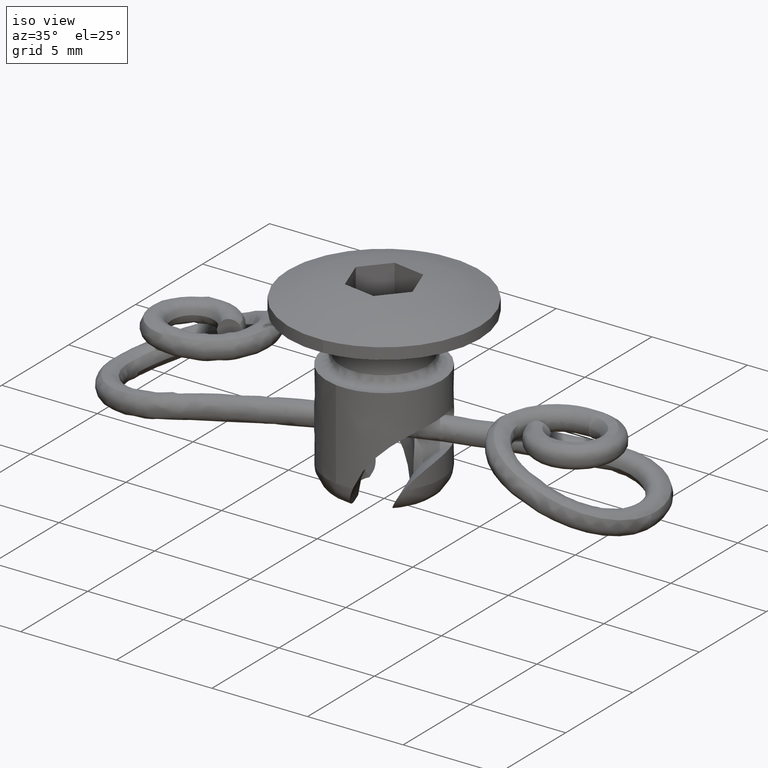
[diagram: clean part render]
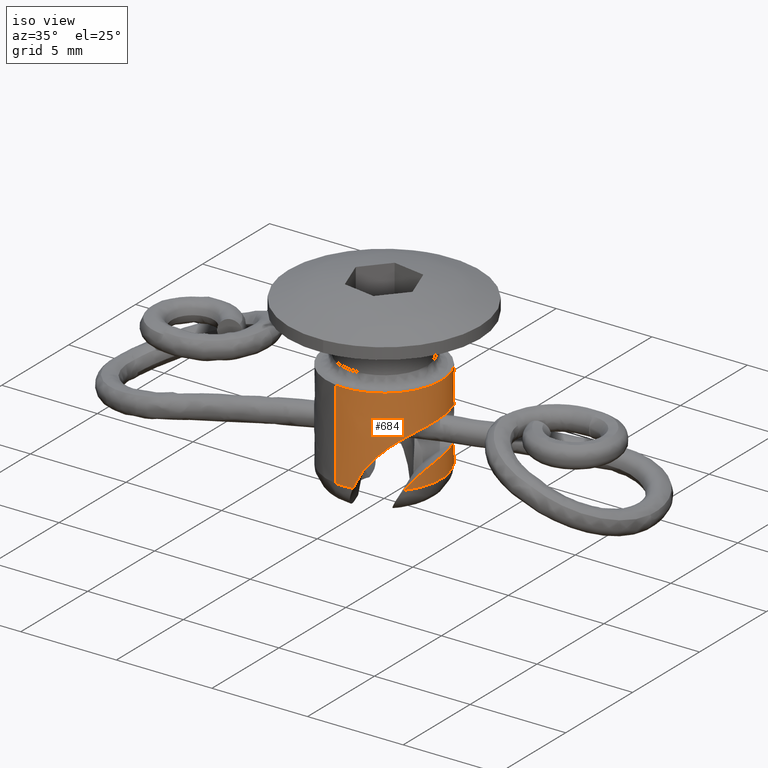
[diagram: same view with one face highlighted and labeled with its STEP entity id]
A machine part, iso view. The second image highlights one B-rep face of the part: STEP entity #684.
In plain terms, the highlighted face is a freeform B-spline surface patch.
Its self-contained STEP definition (entity closure, byte-faithful):
#461=CARTESIAN_POINT('',(0.097878632547272,2.998402870411292,3.473960000000170));
#462=CARTESIAN_POINT('',(0.271563604785300,2.992733169470025,3.473960000000171));
#463=CARTESIAN_POINT('',(0.443432261541700,2.967046988071475,3.473960000000171));
#464=CARTESIAN_POINT('',(3.410479249613175,2.523614726529776,3.473960000000170));
#465=CARTESIAN_POINT('',(2.967046988071475,-0.443432261541700,3.473960000000171));
#466=CARTESIAN_POINT('',(2.523614726529776,-3.410479249613175,3.473960000000170));
#467=CARTESIAN_POINT('',(-0.443432261541700,-2.967046988071475,3.473960000000171));
#468=CARTESIAN_POINT('',(0.097878632547272,2.998402870411292,-1.411446249999832));
#469=CARTESIAN_POINT('',(0.271563604785300,2.992733169470025,-1.411446249999831));
#470=CARTESIAN_POINT('',(0.443432261541700,2.967046988071475,-1.411446249999832));
#471=CARTESIAN_POINT('',(3.410479249613175,2.523614726529776,-1.411446249999832));
#472=CARTESIAN_POINT('',(2.967046988071475,-0.443432261541700,-1.411446249999832));
#473=CARTESIAN_POINT('',(2.523614726529776,-3.410479249613175,-1.411446249999832));
#474=CARTESIAN_POINT('',(-0.443432261541700,-2.967046988071475,-1.411446249999832));
#482=(BOUNDED_SURFACE()B_SPLINE_SURFACE(2,1,((#461,#468),(#462,#469),(#463,#470),(#464,#471),(#465,#472),(#466,#473),(#467,#474)),.UNSPECIFIED.,.F.,.F.,.U.)B_SPLINE_SURFACE_WITH_KNOTS((3,2,2,3),(2,2),(0.0,0.397645019878172,5.368207768355313,10.338770516832451),(0.0,4.885406250000003),.UNSPECIFIED.)GEOMETRIC_REPRESENTATION_ITEM()RATIONAL_B_SPLINE_SURFACE(((0.956886118190660,0.956886118190660),(0.976568542494924,0.976568542494924),(1.0,1.0),(0.707106781186548,0.707106781186548),(1.0,1.0),(0.707106781186548,0.707106781186548),(1.0,1.0)))REPRESENTATION_ITEM('')SURFACE());
#483=CARTESIAN_POINT('',(0.097877919589927,2.998402893684609,3.357710000000170));
#484=VERTEX_POINT('',#483);
#485=CARTESIAN_POINT('',(3.0,0.0,3.357710000000170));
#486=VERTEX_POINT('',#485);
#487=CARTESIAN_POINT('',(0.097877919589927,2.998402893684609,3.357710000000170));
#488=CARTESIAN_POINT('',(3.000000000000000,2.903668593324151,3.357710000000170));
#489=CARTESIAN_POINT('',(3.0,0.0,3.357710000000170));
#497=(BOUNDED_CURVE()B_SPLINE_CURVE(2,(#487,#488,#489),.UNSPECIFIED.,.F.,.U.)B_SPLINE_CURVE_WITH_KNOTS((3,3),(0.255730275463995,0.500000000000000),.UNSPECIFIED.)CURVE()GEOMETRIC_REPRESENTATION_ITEM()RATIONAL_B_SPLINE_CURVE((0.986880888065994,0.713820216487896,1.0))REPRESENTATION_ITEM(''));
#498=EDGE_CURVE('',#484,#486,#497,.T.);
#499=ORIENTED_EDGE('',*,*,#498,.T.);
#500=CARTESIAN_POINT('',(-0.443432261554274,-2.967046988069596,3.357710000000171));
#501=VERTEX_POINT('',#500);
#502=CARTESIAN_POINT('',(3.0,0.0,3.357710000000170));
#503=CARTESIAN_POINT('',(3.0,-3.0,3.357710000000169));
#504=CARTESIAN_POINT('',(0.0,-3.0,3.357710000000170));
#505=CARTESIAN_POINT('',(-0.222940557927680,-3.000000000000000,3.357710000000170));
#506=CARTESIAN_POINT('',(-0.443432261554274,-2.967046988069596,3.357710000000171));
#514=(BOUNDED_CURVE()B_SPLINE_CURVE(2,(#502,#503,#504,#505,#506),.UNSPECIFIED.,.F.,.U.)B_SPLINE_CURVE_WITH_KNOTS((3,2,3),(0.500000000000000,0.750000000000000,0.775489196738188),.UNSPECIFIED.)CURVE()GEOMETRIC_REPRESENTATION_ITEM()RATIONAL_B_SPLINE_CURVE((1.0,0.707106781186548,1.0,0.970137548489531,0.946364456192142))REPRESENTATION_ITEM(''));
#515=EDGE_CURVE('',#486,#501,#514,.T.);
#516=ORIENTED_EDGE('',*,*,#515,.T.);
#517=CARTESIAN_POINT('',(-0.443431364682548,-2.967047122108942,-1.292289999999831));
#518=VERTEX_POINT('',#517);
#519=CARTESIAN_POINT('',(-0.443432261554274,-2.967046988069596,3.357710000000171));
#520=CARTESIAN_POINT('',(-0.443431364682548,-2.967047122108942,-1.292289999999831));
#521=QUASI_UNIFORM_CURVE('',1,(#519,#520),.UNSPECIFIED.,.F.,.U.);
#522=EDGE_CURVE('',#501,#518,#521,.T.);
#523=ORIENTED_EDGE('',*,*,#522,.T.);
#524=CARTESIAN_POINT('',(0.444168385289004,-2.966936879259440,-1.292289999999832));
#525=VERTEX_POINT('',#524);
#526=CARTESIAN_POINT('',(0.444168385289005,-2.966936879259443,-1.292289999999832));
#527=CARTESIAN_POINT('',(0.000377213759785,-3.033375100254846,-1.292289999999833));
#528=CARTESIAN_POINT('',(-0.443431364682548,-2.967047122108941,-1.292289999999830));
#536=(BOUNDED_CURVE()B_SPLINE_CURVE(2,(#526,#527,#528),.UNSPECIFIED.,.F.,.U.)B_SPLINE_CURVE_WITH_KNOTS((3,3),(0.0,0.126809597250072),.UNSPECIFIED.)CURVE()GEOMETRIC_REPRESENTATION_ITEM()RATIONAL_B_SPLINE_CURVE((1.0,0.955857586049456,0.934105899037771))REPRESENTATION_ITEM(''));
#537=EDGE_CURVE('',#525,#518,#536,.T.);
#538=ORIENTED_EDGE('',*,*,#537,.F.);
#539=CARTESIAN_POINT('',(2.819079255377415,1.026056602715210,1.657709999920805));
#540=VERTEX_POINT('',#539);
#541=CARTESIAN_POINT('',(0.444168385289004,-2.966936879259440,-1.292289999999832));
#542=CARTESIAN_POINT('',(0.544659406257001,-2.951892765974988,-1.037903310592415));
#543=CARTESIAN_POINT('',(0.663956368232900,-2.928960668406601,-0.795505827742206));
#544=CARTESIAN_POINT('',(0.866621179116677,-2.872956647063072,-0.448925897933751));
#545=CARTESIAN_POINT('',(0.938151393951186,-2.850659724758085,-0.336252398390128));
#546=CARTESIAN_POINT('',(1.050999827813369,-2.810159530706196,-0.171550457550835));
#547=CARTESIAN_POINT('',(1.089542296836652,-2.795480206242121,-0.117368882846528));
#548=CARTESIAN_POINT('',(1.168418938882233,-2.763441546939051,-0.010461432561245));
#549=CARTESIAN_POINT('',(1.208848230452072,-2.746034220643304,0.042376503330380));
#550=CARTESIAN_POINT('',(1.413042740227345,-2.652470165274185,0.300055469543170));
#551=CARTESIAN_POINT('',(1.584297655017343,-2.556549117546791,0.487330251968873));
#552=CARTESIAN_POINT('',(1.801403318557619,-2.399545266716647,0.698151994891570));
#553=CARTESIAN_POINT('',(1.845021454206836,-2.366228692587066,0.739193455286284));
#554=CARTESIAN_POINT('',(1.932131833016029,-2.295650010770789,0.818731252785504));
#555=CARTESIAN_POINT('',(1.975189113756125,-2.258742475035227,0.856834367426026));
#556=CARTESIAN_POINT('',(2.102527031573386,-2.143020880910660,0.966371055364047));
#557=CARTESIAN_POINT('',(2.184981149237490,-2.059217466546533,1.033036280226010));
#558=CARTESIAN_POINT('',(2.343094063662128,-1.877346373444390,1.154720428213146));
#559=CARTESIAN_POINT('',(2.418762157909040,-1.779285612813649,1.209737423707524));
#560=CARTESIAN_POINT('',(2.525480613104197,-1.620498253611975,1.284242930380608));
#561=CARTESIAN_POINT('',(2.560005105076980,-1.565432784580951,1.307794872336617));
#562=CARTESIAN_POINT('',(2.625264135100784,-1.453338970101125,1.351560209371470));
#563=CARTESIAN_POINT('',(2.656155556856933,-1.396100254914397,1.371886123796001));
#564=CARTESIAN_POINT('',(2.743447097809170,-1.220873080012193,1.428678606132178));
#565=CARTESIAN_POINT('',(2.794481862459040,-1.099385176251344,1.460974321433530));
#566=CARTESIAN_POINT('',(2.859364299706681,-0.910208746885217,1.502702998315064));
#567=CARTESIAN_POINT('',(2.879042924089727,-0.845989735592479,1.515489571983039));
#568=CARTESIAN_POINT('',(2.914287309962954,-0.715203653841232,1.539047756222696));
#569=CARTESIAN_POINT('',(2.929728355159238,-0.649047037933612,1.549739914669376));
#570=CARTESIAN_POINT('',(2.969123247453566,-0.450098113002705,1.578765275348458));
#571=CARTESIAN_POINT('',(2.986372170734420,-0.316119080543319,1.594203021798292));
#572=CARTESIAN_POINT('',(2.998624956997982,-0.113295503326445,1.613072884778590));
#573=CARTESIAN_POINT('',(3.000432576491154,-0.045377076311629,1.618641742151727));
#574=CARTESIAN_POINT('',(2.999393433598814,0.091070058791251,1.628528487974750));
#575=CARTESIAN_POINT('',(2.996521091211831,0.159851007977799,1.632858559454326));
#576=CARTESIAN_POINT('',(2.980895351284322,0.364728507258438,1.644072230068287));
#577=CARTESIAN_POINT('',(2.961250305158376,0.499506313057759,1.649241311860627));
#578=CARTESIAN_POINT('',(2.903882111446879,0.765492396698977,1.656061164204573));
#579=CARTESIAN_POINT('',(2.866160620249459,0.896701069391566,1.657709925634590));
#580=CARTESIAN_POINT('',(2.819079255377415,1.026056602715210,1.657709999920805));
#581=B_SPLINE_CURVE_WITH_KNOTS('',3,(#541,#542,#543,#544,#545,#546,#547,#548,#549,#550,#551,#552,#553,#554,#555,#556,#557,#558,#559,#560,#561,#562,#563,#564,#565,#566,#567,#568,#569,#570,#571,#572,#573,#574,#575,#576,#577,#578,#579,#580),.UNSPECIFIED.,.F.,.U.,(4,2,2,2,2,2,2,2,2,2,2,2,2,2,2,2,2,2,2,4),(0.0,0.125000000000000,0.187500000000000,0.218750000000000,0.250000000000000,0.374999999999999,0.406249999999999,0.437499999999999,0.499999999999999,0.562499999999999,0.593749999999999,0.624999999999999,0.687499999999999,0.718749999999999,0.749999999999999,0.812499999999999,0.843749999999999,0.875000000000000,0.937500000000000,1.0),.UNSPECIFIED.);
#582=EDGE_CURVE('',#525,#540,#581,.T.);
#583=ORIENTED_EDGE('',*,*,#582,.T.);
#584=CARTESIAN_POINT('',(2.819079255374355,1.026056602714096,-0.142289999991877));
#585=VERTEX_POINT('',#584);
#586=CARTESIAN_POINT('',(2.819079255374355,1.026056602714096,-0.142289999991877));
#587=CARTESIAN_POINT('',(2.798787563459233,1.081807803527331,-0.142289999996963));
#588=CARTESIAN_POINT('',(2.777071330994223,1.136332377165645,-0.136480304739258));
#589=CARTESIAN_POINT('',(2.742506968207131,1.216346842615860,-0.119129880233100));
#590=CARTESIAN_POINT('',(2.730585801867040,1.242865159520021,-0.111844681301118));
#591=CARTESIAN_POINT('',(2.706474975272216,1.294529194082489,-0.094533970763881));
#592=CARTESIAN_POINT('',(2.694314329538791,1.319626982565934,-0.084546429648716));
#593=CARTESIAN_POINT('',(2.657627479217430,1.392837571149255,-0.050711064554058));
#594=CARTESIAN_POINT('',(2.632888936089257,1.438883876355293,-0.023029815507991));
#595=CARTESIAN_POINT('',(2.583569164928963,1.525667502912976,0.042885000496805));
#596=CARTESIAN_POINT('',(2.559774746523615,1.565035425981300,0.080076296669885));
#597=CARTESIAN_POINT('',(2.525982005771663,1.618598333712503,0.141971865386467));
#598=CARTESIAN_POINT('',(2.515035118595220,1.635532514308732,0.163631668568243));
#599=CARTESIAN_POINT('',(2.493906339457403,1.667572913890874,0.209070017653161));
#600=CARTESIAN_POINT('',(2.483712487426561,1.682693184897953,0.232905299932680));
#601=CARTESIAN_POINT('',(2.455117224614600,1.724394302995494,0.306105802051412));
#602=CARTESIAN_POINT('',(2.438451860688097,1.747714279683922,0.357613915848345));
#603=CARTESIAN_POINT('',(2.410762553321754,1.785714588562771,0.466166215822518));
#604=CARTESIAN_POINT('',(2.399755522698995,1.800366530344499,0.523635630096663));
#605=CARTESIAN_POINT('',(2.385164639273614,1.819652674514505,0.639424092088333));
#606=CARTESIAN_POINT('',(2.381395713076576,1.824542260020834,0.698297860976887));
#607=CARTESIAN_POINT('',(2.381431412775355,1.824495663767988,0.817964422355112));
#608=CARTESIAN_POINT('',(2.385232270392656,1.819564082829736,0.876724452896376));
#609=CARTESIAN_POINT('',(2.396183190321146,1.805088010938527,0.963338144924110));
#610=CARTESIAN_POINT('',(2.400712142070798,1.799072745212609,0.991953196242126));
#611=CARTESIAN_POINT('',(2.411498351674309,1.784588813011299,1.048663778301734));
#612=CARTESIAN_POINT('',(2.417765794664551,1.776104644853146,1.076744015598236));
#613=CARTESIAN_POINT('',(2.438604389193045,1.747502567175143,1.158333371559557));
#614=CARTESIAN_POINT('',(2.455310668131672,1.724119434362310,1.209873522152844));
#615=CARTESIAN_POINT('',(2.483926023514593,1.682378104040150,1.283028736868690));
#616=CARTESIAN_POINT('',(2.494119779122599,1.667253907436438,1.306835256371492));
#617=CARTESIAN_POINT('',(2.515267491361161,1.635175376335626,1.352261236474080));
#618=CARTESIAN_POINT('',(2.526220246055184,1.618226585036390,1.373907169435248));
#619=CARTESIAN_POINT('',(2.560018321019423,1.564637416283882,1.435743770831518));
#620=CARTESIAN_POINT('',(2.583794883938562,1.525283784775476,1.472865748933765));
#621=CARTESIAN_POINT('',(2.633060129469588,1.438569074102349,1.538649295708925));
#622=CARTESIAN_POINT('',(2.657836751483460,1.392433283653769,1.566343804786232));
#623=CARTESIAN_POINT('',(2.694431331304596,1.319386775219793,1.600064380717531));
#624=CARTESIAN_POINT('',(2.706550102460794,1.294369410030268,1.610009478959405));
#625=CARTESIAN_POINT('',(2.730555950272403,1.242927925981477,1.627241676399199));
#626=CARTESIAN_POINT('',(2.742505416788736,1.216352419795307,1.634551502699700));
#627=CARTESIAN_POINT('',(2.777171010688758,1.136097644755852,1.651945528865713));
#628=CARTESIAN_POINT('',(2.798866813686246,1.081590064405126,1.657710000004951));
#629=CARTESIAN_POINT('',(2.819079255377415,1.026056602715210,1.657709999920805));
#630=B_SPLINE_CURVE_WITH_KNOTS('',3,(#586,#587,#588,#589,#590,#591,#592,#593,#594,#595,#596,#597,#598,#599,#600,#601,#602,#603,#604,#605,#606,#607,#608,#609,#610,#611,#612,#613,#614,#615,#616,#617,#618,#619,#620,#621,#622,#623,#624,#625,#626,#627,#628,#629),.UNSPECIFIED.,.F.,.U.,(4,2,2,2,2,2,2,2,2,2,2,2,2,2,2,2,2,2,2,2,2,4),(0.0,0.062500000000000,0.093750000000000,0.125000000000000,0.187500000000001,0.250000000000001,0.281250000000001,0.312500000000001,0.375000000000001,0.437500000000001,0.500000000000002,0.562500000000002,0.593750000000002,0.625000000000002,0.687500000000002,0.718750000000002,0.750000000000002,0.812500000000001,0.875000000000001,0.906250000000001,0.937500000000000,1.0),.UNSPECIFIED.);
#631=EDGE_CURVE('',#585,#540,#630,.T.);
#632=ORIENTED_EDGE('',*,*,#631,.F.);
#633=CARTESIAN_POINT('',(2.339784704841210,-1.877606863800600,-1.292289999999832));
#634=VERTEX_POINT('',#633);
#635=CARTESIAN_POINT('',(2.339784704841210,-1.877606863800600,-1.292289999999832));
#636=CARTESIAN_POINT('',(2.459751462827203,-1.728109974522705,-1.082395539714364));
#637=CARTESIAN_POINT('',(2.580150774414548,-1.549256877072408,-0.902798682980261));
#638=CARTESIAN_POINT('',(2.713363660869288,-1.281110289746730,-0.712765460819322));
#639=CARTESIAN_POINT('',(2.739019530370457,-1.225395787664659,-0.676636610420460));
#640=CARTESIAN_POINT('',(2.787182221038592,-1.111502627483839,-0.608945072067846));
#641=CARTESIAN_POINT('',(2.809807602220198,-1.053092640022102,-0.577213352470123));
#642=CARTESIAN_POINT('',(2.872805170466641,-0.873545609795320,-0.487856333825385));
#643=CARTESIAN_POINT('',(2.908314489763902,-0.748106179607430,-0.436048719661641));
#644=CARTESIAN_POINT('',(2.949651540737123,-0.551402570778819,-0.368341831432250));
#645=CARTESIAN_POINT('',(2.961453069062340,-0.484181034671302,-0.347396553844316));
#646=CARTESIAN_POINT('',(2.980369611459981,-0.349331552654491,-0.309284760485727));
#647=CARTESIAN_POINT('',(2.987552712062599,-0.281453465035469,-0.292018391983372));
#648=CARTESIAN_POINT('',(3.002146607856143,-0.076581892573290,-0.244977882304382));
#649=CARTESIAN_POINT('',(3.002631204220505,0.061638743964974,-0.219918575661222));
#650=CARTESIAN_POINT('',(2.988542547184150,0.271130622577268,-0.190191297655284));
#651=CARTESIAN_POINT('',(2.981324880779193,0.341558698262106,-0.181585823763321));
#652=CARTESIAN_POINT('',(2.962011858686508,0.481088493015655,-0.167073026020165));
#653=CARTESIAN_POINT('',(2.949921257585059,0.550370947446393,-0.161131107068776));
#654=CARTESIAN_POINT('',(2.906387077443438,0.756761903805161,-0.146946177758306));
#655=CARTESIAN_POINT('',(2.867718981981358,0.892419487634834,-0.142290201833631));
#656=CARTESIAN_POINT('',(2.819079255374355,1.026056602714096,-0.142289999991877));
#657=B_SPLINE_CURVE_WITH_KNOTS('',3,(#635,#636,#637,#638,#639,#640,#641,#642,#643,#644,#645,#646,#647,#648,#649,#650,#651,#652,#653,#654,#655,#656),.UNSPECIFIED.,.F.,.U.,(4,2,2,2,2,2,2,2,2,2,4),(0.0,0.250000000000000,0.312500000000000,0.375000000000000,0.500000000000000,0.562500000000000,0.625000000000000,0.750000000000000,0.812500000000000,0.875000000000000,1.0),.UNSPECIFIED.);
#658=EDGE_CURVE('',#634,#585,#657,.T.);
#659=ORIENTED_EDGE('',*,*,#658,.F.);
#660=CARTESIAN_POINT('',(0.097878632552068,2.998402870411136,-1.292289999999832));
#661=VERTEX_POINT('',#660);
#662=CARTESIAN_POINT('',(0.097878632552068,2.998402870411136,-1.292289999999833));
#663=CARTESIAN_POINT('',(1.768351127093426,2.943872651972827,-1.292289999999832));
#664=CARTESIAN_POINT('',(2.601103867080997,1.494743681256518,-1.292289999999832));
#665=CARTESIAN_POINT('',(3.621325148097463,-0.280611888134146,-1.292289999999832));
#666=CARTESIAN_POINT('',(2.339784704841212,-1.877606863800600,-1.292289999999832));
#674=(BOUNDED_CURVE()B_SPLINE_CURVE(2,(#662,#663,#664,#665,#666),.UNSPECIFIED.,.F.,.U.)B_SPLINE_CURVE_WITH_KNOTS((3,2,3),(0.078392486941969,0.500000000000000,1.0),.UNSPECIFIED.)CURVE()GEOMETRIC_REPRESENTATION_ITEM()RATIONAL_B_SPLINE_CURVE((0.953979987643924,0.853238447486228,1.0,0.825950027017697,1.0))REPRESENTATION_ITEM(''));
#675=EDGE_CURVE('',#661,#634,#674,.T.);
#676=ORIENTED_EDGE('',*,*,#675,.F.);
#677=CARTESIAN_POINT('',(0.097877919589927,2.998402893684609,3.357710000000170));
#678=CARTESIAN_POINT('',(0.097878632552068,2.998402870411136,-1.292289999999832));
#679=QUASI_UNIFORM_CURVE('',1,(#677,#678),.UNSPECIFIED.,.F.,.U.);
#680=EDGE_CURVE('',#484,#661,#679,.T.);
#681=ORIENTED_EDGE('',*,*,#680,.F.);
#682=EDGE_LOOP('',(#499,#516,#523,#538,#583,#632,#659,#676,#681));
#683=FACE_OUTER_BOUND('',#682,.T.);
#684=ADVANCED_FACE('',(#683),#482,.T.);